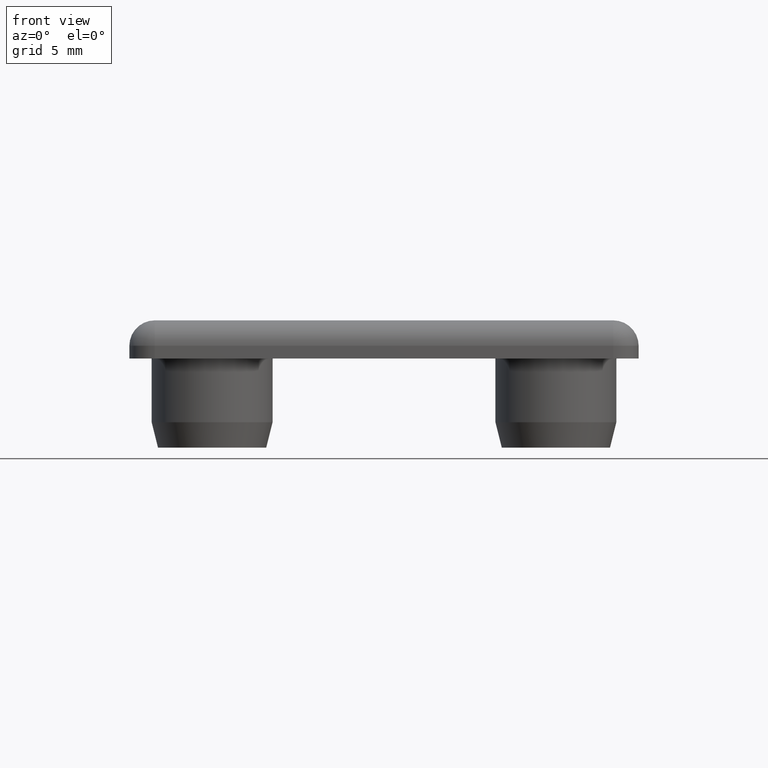
[diagram: clean part render]
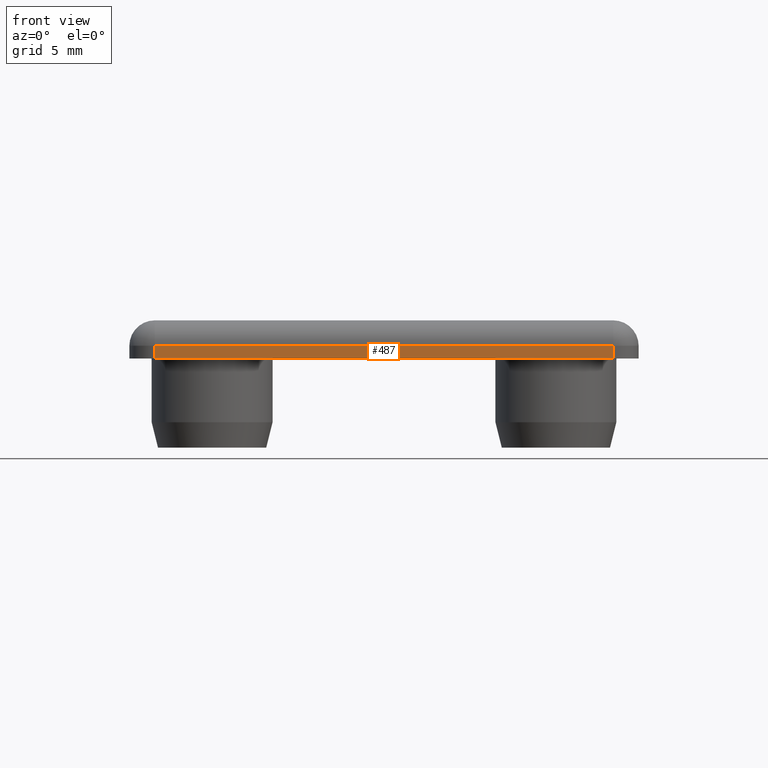
[diagram: same view with one face highlighted and labeled with its STEP entity id]
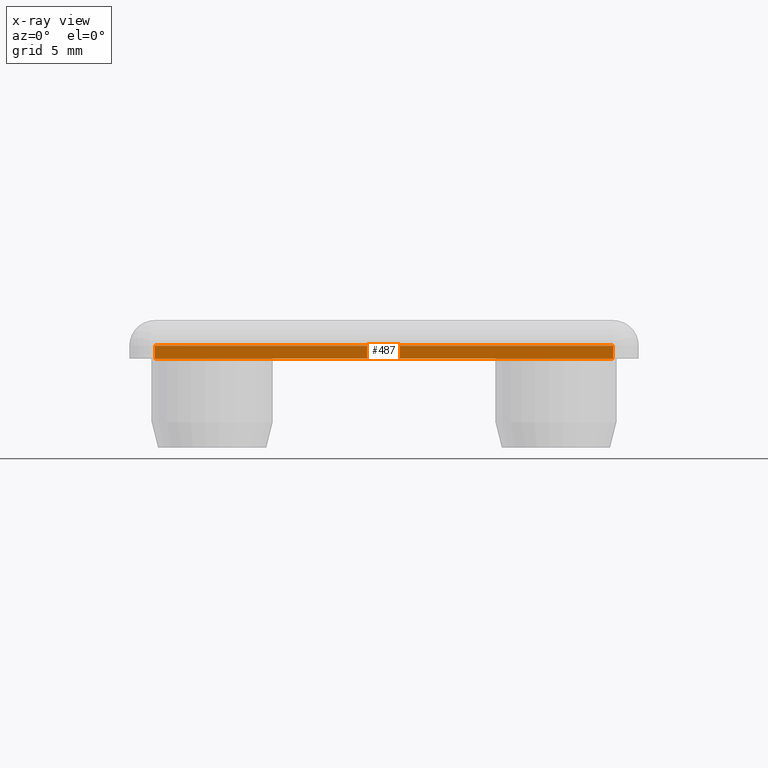
[diagram: x-ray of the same camera — body ghosted, the highlighted face saturated]
A machine part, front view. The second image highlights one B-rep face of the part: STEP entity #487.
The next image is the same camera in x-ray: the body ghosted, the highlighted face saturated — about 0% of this face is hidden behind the body in this view.
In plain terms, the highlighted planar face has unit normal (0, -1, 0).
Its self-contained STEP definition (entity closure, byte-faithful):
#25=LINE('',#821,#45);
#33=LINE('',#851,#53);
#35=LINE('',#861,#55);
#37=LINE('',#864,#57);
#45=VECTOR('',#667,36.);
#53=VECTOR('',#705,1.);
#55=VECTOR('',#719,1.);
#57=VECTOR('',#723,36.);
#69=PLANE('',#563);
#143=FACE_OUTER_BOUND('',#201,.T.);
#201=EDGE_LOOP('',(#436,#437,#438,#439));
#270=VERTEX_POINT('',#818);
#271=VERTEX_POINT('',#820);
#277=VERTEX_POINT('',#844);
#280=VERTEX_POINT('',#857);
#311=EDGE_CURVE('',#270,#271,#25,.T.);
#328=EDGE_CURVE('',#277,#270,#33,.T.);
#333=EDGE_CURVE('',#271,#280,#35,.T.);
#335=EDGE_CURVE('',#280,#277,#37,.T.);
#436=ORIENTED_EDGE('',*,*,#328,.F.);
#437=ORIENTED_EDGE('',*,*,#335,.F.);
#438=ORIENTED_EDGE('',*,*,#333,.F.);
#439=ORIENTED_EDGE('',*,*,#311,.F.);
#487=ADVANCED_FACE('',(#143),#69,.T.);
#563=AXIS2_PLACEMENT_3D('',#868,#729,#730);
#667=DIRECTION('',(-1.,-1.11022302462516E-16,0.));
#705=DIRECTION('',(0.,0.,-1.));
#719=DIRECTION('',(0.,0.,1.));
#723=DIRECTION('',(1.,1.11022302462516E-16,0.));
#729=DIRECTION('center_axis',(1.11022302462516E-16,-1.,0.));
#730=DIRECTION('ref_axis',(1.,0.,0.));
#818=CARTESIAN_POINT('',(18.,-20.,0.));
#820=CARTESIAN_POINT('',(-18.,-20.,0.));
#821=CARTESIAN_POINT('',(20.,-20.,0.));
#844=CARTESIAN_POINT('',(18.,-20.,1.));
#851=CARTESIAN_POINT('',(18.,-20.,0.));
#857=CARTESIAN_POINT('',(-18.,-20.,1.));
#861=CARTESIAN_POINT('',(-18.,-20.,0.));
#864=CARTESIAN_POINT('',(-10.,-20.,1.));
#868=CARTESIAN_POINT('Origin',(-20.,-20.,0.));